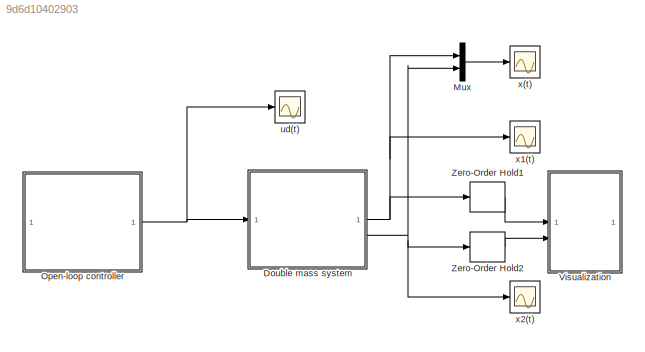
MODEL slx_9d6d10402903
KIND model
CONFIG AbsTol = auto
CONFIG EnableMultiTasking = off
CONFIG FixedStep = 0.01
CONFIG MaxStep = auto
CONFIG MinStep = auto
CONFIG RelTol = 1e-3
CONFIG SampleTimeConstraint = Unconstrained
CONFIG SolverName = ode3
CONFIG StartTime = 0.0
CONFIG StopTime = H
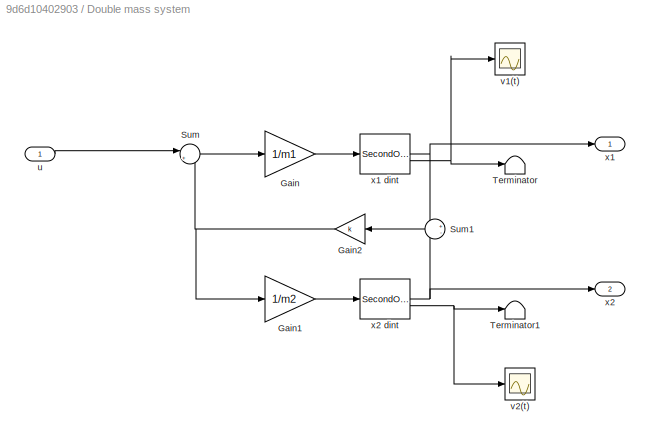
BLOCK [SubSystem] Double mass system
BLOCK [Gain] Double mass system/Gain
  Gain = 1/m1
BLOCK [Gain] Double mass system/Gain1
  Gain = 1/m2
BLOCK [Gain] Double mass system/Gain2
  Gain = k
BLOCK [Sum] Double mass system/Sum
  Inputs = |+-
BLOCK [Sum] Double mass system/Sum1
  Inputs = +-
BLOCK [Terminator] Double mass system/Terminator
BLOCK [Terminator] Double mass system/Terminator1
BLOCK [Inport] Double mass system/u
BLOCK [Scope] Double mass system/v1(t)
  Floating = off
  NumInputPorts = 1
  ScopeSpecificationString = Simulink.scopes.TimeScopeBlockCfg('CurrentConfiguration', extmgr.ConfigurationSet(extmgr.Configuration('Core','General UI',true),extmgr.Configuration('Core','Source UI',true),extmgr.Configuration('Sources','WiredSimulink',true,'DataLoggingVariableName','ScopeData3'),extmgr.Configuration('Visuals','Time Domain',true,'SerializedDisplays',{struct('MinYLimReal','-0.23196','MaxYLimReal','2.08762','YLab...<+1398ch>
BLOCK [Scope] Double mass system/v2(t)
  Floating = off
  NumInputPorts = 1
  ScopeSpecificationString = Simulink.scopes.TimeScopeBlockCfg('CurrentConfiguration', extmgr.ConfigurationSet(extmgr.Configuration('Core','General UI',true),extmgr.Configuration('Core','Source UI',true),extmgr.Configuration('Sources','WiredSimulink',true,'DataLoggingVariableName','ScopeData4'),extmgr.Configuration('Visuals','Time Domain',true,'SerializedDisplays',{struct('MinYLimReal','-0.27344','MaxYLimReal','2.46094','YLab...<+1398ch>
BLOCK [Outport] Double mass system/x1
BLOCK [SecondOrderIntegrator] Double mass system/x1 dint
  ICX = 0
BLOCK [Outport] Double mass system/x2
  Port = 2
BLOCK [SecondOrderIntegrator] Double mass system/x2 dint
BLOCK [Mux] Mux
  DisplayOption = bar
  Inputs = 2
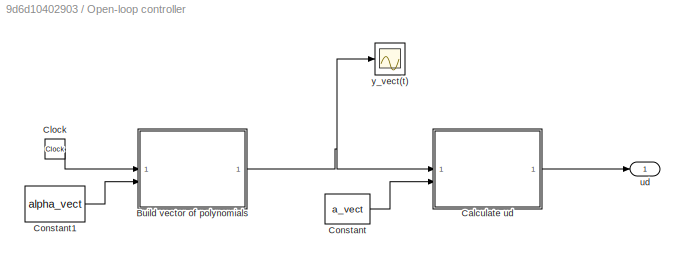
BLOCK [SubSystem] Open-loop controller
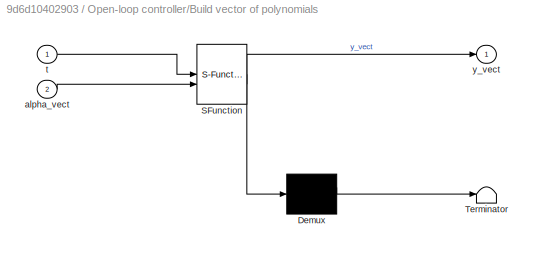
BLOCK [SubSystem] Open-loop controller/Build vector of polynomials
  ErrorFcn = Stateflow.Translate.translate
  PermitHierarchicalResolution = ExplicitOnly
  SFBlockType = MATLAB Function
  TreatAsAtomicUnit = on
BLOCK [Demux] Open-loop controller/Build vector of polynomials/ Demux 
  Outputs = 1
BLOCK [S-Function] Open-loop controller/Build vector of polynomials/ SFunction 
  EnableBusSupport = on
  FunctionName = sf_sfun
  PortCounts = [2 2]
  SFcnIsStateOwnerBlock = off
  SFunctionDeploymentMode = off
  Tag = Stateflow S-Function 1
BLOCK [Terminator] Open-loop controller/Build vector of polynomials/ Terminator 
BLOCK [Inport] Open-loop controller/Build vector of polynomials/alpha_vect
  Port = 2
BLOCK [Inport] Open-loop controller/Build vector of polynomials/t
BLOCK [Outport] Open-loop controller/Build vector of polynomials/y_vect
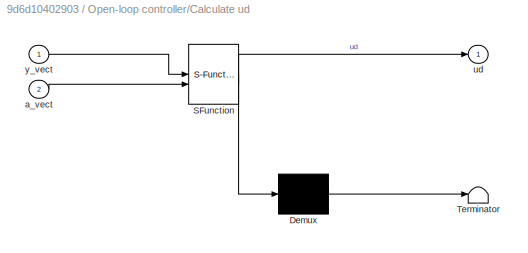
BLOCK [SubSystem] Open-loop controller/Calculate ud
  ErrorFcn = Stateflow.Translate.translate
  PermitHierarchicalResolution = ExplicitOnly
  SFBlockType = MATLAB Function
  TreatAsAtomicUnit = on
BLOCK [Demux] Open-loop controller/Calculate ud/ Demux 
  Outputs = 1
BLOCK [S-Function] Open-loop controller/Calculate ud/ SFunction 
  EnableBusSupport = on
  FunctionName = sf_sfun
  PortCounts = [2 2]
  SFcnIsStateOwnerBlock = off
  SFunctionDeploymentMode = off
  Tag = Stateflow S-Function 2
BLOCK [Terminator] Open-loop controller/Calculate ud/ Terminator 
BLOCK [Inport] Open-loop controller/Calculate ud/a_vect
  Port = 2
BLOCK [Outport] Open-loop controller/Calculate ud/ud
BLOCK [Inport] Open-loop controller/Calculate ud/y_vect
BLOCK [Clock] Open-loop controller/Clock
BLOCK [Constant] Open-loop controller/Constant
  Value = a_vect
  VectorParams1D = off
BLOCK [Constant] Open-loop controller/Constant1
  Value = alpha_vect
  VectorParams1D = off
BLOCK [Outport] Open-loop controller/ud
BLOCK [Scope] Open-loop controller/y_vect(t)
  Floating = off
  NumInputPorts = 1
  ScopeSpecificationString = Simulink.scopes.TimeScopeBlockCfg('CurrentConfiguration', extmgr.ConfigurationSet(extmgr.Configuration('Core','General UI',true),extmgr.Configuration('Core','Source UI',true),extmgr.Configuration('Sources','WiredSimulink',true,'DataLoggingVariableName','ScopeData5'),extmgr.Configuration('Visuals','Time Domain',true,'SerializedDisplays',{struct('MinYLimReal','-87.8','MaxYLimReal','454.2','YLabelRea...<+1502ch>
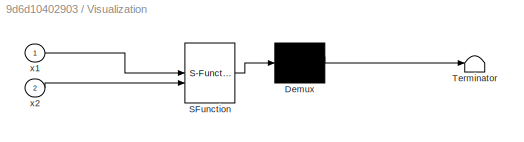
BLOCK [SubSystem] Visualization
  ErrorFcn = Stateflow.Translate.translate
  PermitHierarchicalResolution = ExplicitOnly
  SFBlockType = MATLAB Function
  TreatAsAtomicUnit = on
BLOCK [Demux] Visualization/ Demux 
  Outputs = 1
BLOCK [S-Function] Visualization/ SFunction 
  EnableBusSupport = on
  FunctionName = sf_sfun
  PortCounts = [2 1]
  SFcnIsStateOwnerBlock = off
  SFunctionDeploymentMode = off
  Tag = Stateflow S-Function 4
BLOCK [Terminator] Visualization/ Terminator 
BLOCK [Inport] Visualization/x1
BLOCK [Inport] Visualization/x2
  Port = 2
BLOCK [ZeroOrderHold] Zero-Order Hold1
  SampleTime = 0.2
BLOCK [ZeroOrderHold] Zero-Order Hold2
  SampleTime = 0.2
BLOCK [Scope] ud(t)
  Floating = off
  NumInputPorts = 1
  ScopeSpecificationString = Simulink.scopes.TimeScopeBlockCfg('CurrentConfiguration', extmgr.ConfigurationSet(extmgr.Configuration('Core','General UI',true),extmgr.Configuration('Core','Source UI',true),extmgr.Configuration('Sources','WiredSimulink',true,'DataLoggingVariableName','ScopeData2'),extmgr.Configuration('Visuals','Time Domain',true,'SerializedDisplays',{struct('MinYLimReal','-42.00000','MaxYLimReal','42.00000','YL...<+1415ch>
BLOCK [Scope] x(t)
  Floating = off
  NumInputPorts = 1
  ScopeSpecificationString = Simulink.scopes.TimeScopeBlockCfg('CurrentConfiguration', extmgr.ConfigurationSet(extmgr.Configuration('Core','General UI',true),extmgr.Configuration('Core','Source UI',true),extmgr.Configuration('Sources','WiredSimulink',true,'DataLoggingVariableName','ScopeData6'),extmgr.Configuration('Visuals','Time Domain',true,'SerializedDisplays',{struct('MinYLimReal','-5.00000','MaxYLimReal','45.00000','YLa...<+1418ch>
BLOCK [Scope] x1(t)
  Floating = off
  NumInputPorts = 1
  ScopeSpecificationString = Simulink.scopes.TimeScopeBlockCfg('CurrentConfiguration', extmgr.ConfigurationSet(extmgr.Configuration('Core','General UI',true),extmgr.Configuration('Core','Source UI',true),extmgr.Configuration('Sources','WiredSimulink',true),extmgr.Configuration('Visuals','Time Domain',true,'SerializedDisplays',{struct('MinYLimReal','-5.00000','MaxYLimReal','45.00000','YLabelReal','','MinYLimMag','0.00000','Max...<+1379ch>
BLOCK [Scope] x2(t)
  Floating = off
  NumInputPorts = 1
  ScopeSpecificationString = Simulink.scopes.TimeScopeBlockCfg('CurrentConfiguration', extmgr.ConfigurationSet(extmgr.Configuration('Core','General UI',true),extmgr.Configuration('Core','Source UI',true),extmgr.Configuration('Sources','WiredSimulink',true,'DataLoggingVariableName','ScopeData1'),extmgr.Configuration('Visuals','Time Domain',true,'SerializedDisplays',{struct('MinYLimReal','-5.00000','MaxYLimReal','45.00000','YLa...<+1419ch>
LINE Double mass system/Gain1:1 -> Double mass system/x2 dint:1
NET Double mass system/Gain2:1 -> Double mass system/Gain1:1, Double mass system/Sum:2
LINE Double mass system/Gain:1 -> Double mass system/x1 dint:1
LINE Double mass system/Sum1:1 -> Double mass system/Gain2:1
LINE Double mass system/Sum:1 -> Double mass system/Gain:1
LINE Double mass system/u:1 -> Double mass system/Sum:1
NET Double mass system/x1 dint:1 -> Double mass system/Sum1:1, Double mass system/x1:1
NET Double mass system/x1 dint:2 -> Double mass system/Terminator:1, Double mass system/v1(t):1
NET Double mass system/x2 dint:1 -> Double mass system/Sum1:2, Double mass system/x2:1
NET Double mass system/x2 dint:2 -> Double mass system/Terminator1:1, Double mass system/v2(t):1
NET Double mass system:1 -> Mux:1, Zero-Order Hold1:1, x1(t):1
NET Double mass system:2 -> Mux:2, Zero-Order Hold2:1, x2(t):1
LINE Mux:1 -> x(t):1
NET Open-loop controller/Build vector of polynomials:1 -> Open-loop controller/Calculate ud:1, Open-loop controller/y_vect(t):1
LINE Open-loop controller/Calculate ud:1 -> Open-loop controller/ud:1
LINE Open-loop controller/Clock:1 -> Open-loop controller/Build vector of polynomials:1
LINE Open-loop controller/Constant1:1 -> Open-loop controller/Build vector of polynomials:2
LINE Open-loop controller/Constant:1 -> Open-loop controller/Calculate ud:2
NET Open-loop controller:1 -> Double mass system:1, ud(t):1
LINE Zero-Order Hold1:1 -> Visualization:1
LINE Zero-Order Hold2:1 -> Visualization:2
note: NET lines group one-source signal fan-out (src -> all destinations, sorted); 1:1 wires keep LINE
CHART Open-loop controller/Calculate ud states=1 transitions=1
  STATE_LABEL 'eML_blk_kernel()'
  STATE_LABEL "SCRIPT:\nfunction ud = fcn(y_vect,a_vect)\n\nae_vect = [ a_vect ; 1 ]; % extended parameter vector\n\nud = ae_vect' * y_vect;\n"
CHART Visualization states=1 transitions=1
  STATE_LABEL 'eML_blk_kernel()'
  STATE_LABEL 'SCRIPT:\nfunction fcn(x1,x2)\n\n\nso = 12; % spring offset\n% mass 1\n    Xmass1 = [ 5 ; 5 ; -5 ; -5 ; 5 ] + x1 - so;\n    Ymass1 = [ -5 ; 5 ; 5 ; -5 ; -5]; \n\n% mass 2\n    Xmass2 = [ 5 ; 5 ; -5 ; -5 ; 5 ] + x2 + so;\n    Ymass2 = [ -5 ; 5 ; 5 ; -5 ; -5]; \n\n% the spring\n    Xspring = [ 0 ; 4 ; 6 ; 10 ; 14 ; 18 ; 20 ; 24 ]/24*(x2-x1+2*so-10) + (x1-so+5);\n    Yspring = [ 0 ; 0 ; 3 ; -3 ; 3 ; -3 ; 0 ; 0 ];\n\n%...<+613ch>'
CHART Open-loop controller/Build vector of polynomials states=1 transitions=1
  STATE_LABEL 'eML_blk_kernel()'
  STATE_LABEL 'SCRIPT:\nfunction y_vect = fcn(t,alpha_vect)\n\n% if poly7traj is used\nt_vect0 = [ 1 ; t ; t^2 ; t^3 ; t^4 ; t^5 ; t^6 ; t^7 ];\nt_vect1 = [ 0 ; 1 ; 2*t ; 3*t^2 ; 4*t^3 ; 5*t^4 ; 6*t^5 ; 7*t^6 ];\nt_vect2 = [ 0 ; 0 ; 2 ; 2*3*t ; 3*4*t^2 ; 4*5*t^3 ; 5*6*t^4 ; 6*7*t^5 ];\nt_vect3 = [ 0 ; 0 ; 0 ; 2*3 ; 2*3*4*t ; 3*4*5*t^2 ; 4*5*6*t^3 ; 5*6*7*t^4 ];\nt_vect4 = [ 0 ; 0 ; 0 ; 0 ; 2*3*4 ; 2*3*4*5*t ; 3*4*5*6*t^...<+226ch>'
CHART  states=0 transitions=0
CHART  states=0 transitions=0
CHART  states=0 transitions=0
